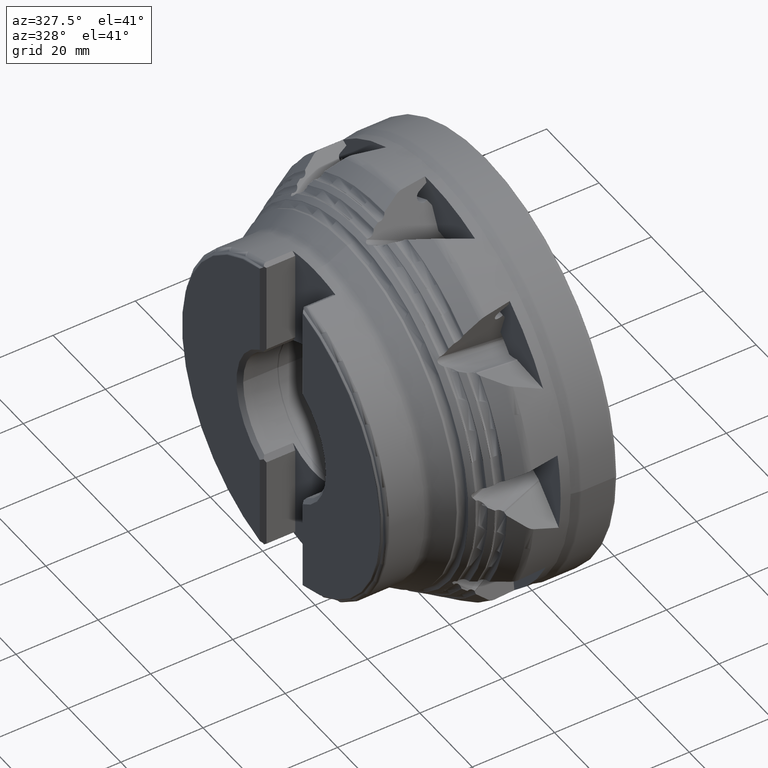
[diagram: clean part render]
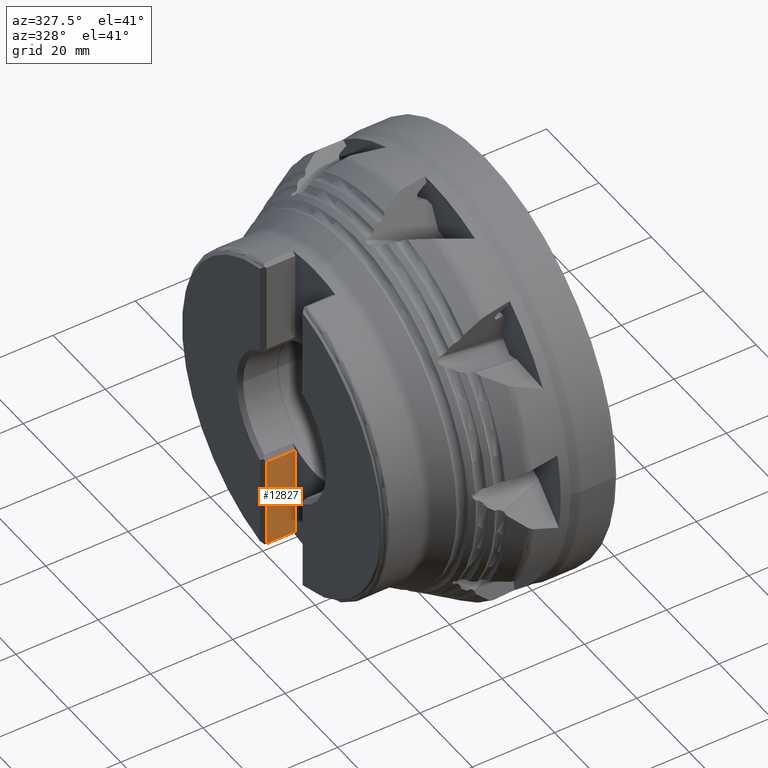
[diagram: same view with one face highlighted and labeled with its STEP entity id]
A machine part, auxiliary view. The second image highlights one B-rep face of the part: STEP entity #12827.
In plain terms, the highlighted planar face has unit normal (0, 1, -0).
Its self-contained STEP definition (entity closure, byte-faithful):
#4596 = CARTESIAN_POINT ( 'NONE',  ( -47.25000000000000000, 7.200000000000005500, 43.17499999999999700 ) ) ;
#4597 = DIRECTION ( 'NONE',  ( -0.0000000000000000000, -0.0000000000000000000, -1.000000000000000000 ) ) ;
#4607 = CARTESIAN_POINT ( 'NONE',  ( -40.25000000000000000, 7.200000000000005500, -15.37239106759902200 ) ) ;
#4608 = DIRECTION ( 'NONE',  ( -1.000000000000000000, 0.0000000000000000000, 0.0000000000000000000 ) ) ;
#4609 = CARTESIAN_POINT ( 'NONE',  ( -40.25000000000000000, 7.200000000000005500, 43.17499999999999700 ) ) ;
#4610 = DIRECTION ( 'NONE',  ( -0.0000000000000000000, -0.0000000000000000000, -1.000000000000000000 ) ) ;
#4611 = CARTESIAN_POINT ( 'NONE',  ( -40.25000000000000000, 7.200000000000005500, -37.47303783587896900 ) ) ;
#4612 = DIRECTION ( 'NONE',  ( 1.000000000000000000, 0.0000000000000000000, 0.0000000000000000000 ) ) ;
#5962 = FACE_OUTER_BOUND ( 'NONE', #14029, .T. ) ;
#6901 = CARTESIAN_POINT ( 'NONE',  ( -40.25000000000000000, 7.200000000000005500, 43.17499999999999700 ) ) ;
#6902 = PLANE ( 'NONE',  #22703 ) ;
#6904 = DIRECTION ( 'NONE',  ( 0.0000000000000000000, 1.000000000000000000, -0.0000000000000000000 ) ) ;
#6905 = DIRECTION ( 'NONE',  ( 0.0000000000000000000, 0.0000000000000000000, 1.000000000000000000 ) ) ;
#7605 = CARTESIAN_POINT ( 'NONE',  ( -47.24999999999999300, 7.199999999999998400, -15.37239106759905700 ) ) ;
#7625 = CARTESIAN_POINT ( 'NONE',  ( -40.25000000000000000, 7.200000000000005500, -37.47303783587896900 ) ) ;
#7638 = CARTESIAN_POINT ( 'NONE',  ( -40.25000000000000000, 7.200000000000005500, -15.37239106759902200 ) ) ;
#7639 = CARTESIAN_POINT ( 'NONE',  ( -47.25000000000000000, 7.200000000000004600, -37.47303783587895500 ) ) ;
#10445 = EDGE_CURVE ( 'NONE', #14613, #14647, #21461, .T. ) ;
#10450 = EDGE_CURVE ( 'NONE', #14646, #14613, #21472, .T. ) ;
#10451 = EDGE_CURVE ( 'NONE', #14646, #14633, #21478, .T. ) ;
#10452 = EDGE_CURVE ( 'NONE', #14647, #14633, #21480, .T. ) ;
#12827 = ADVANCED_FACE ( 'NONE', ( #5962 ), #6902, .F. ) ;
#13248 = ORIENTED_EDGE ( 'NONE', *, *, #10451, .F. ) ;
#13249 = ORIENTED_EDGE ( 'NONE', *, *, #10450, .T. ) ;
#13250 = ORIENTED_EDGE ( 'NONE', *, *, #10445, .T. ) ;
#13251 = ORIENTED_EDGE ( 'NONE', *, *, #10452, .T. ) ;
#14029 = EDGE_LOOP ( 'NONE', ( #13248, #13249, #13250, #13251 ) ) ;
#14613 = VERTEX_POINT ( 'NONE', #7605 ) ;
#14633 = VERTEX_POINT ( 'NONE', #7625 ) ;
#14646 = VERTEX_POINT ( 'NONE', #7638 ) ;
#14647 = VERTEX_POINT ( 'NONE', #7639 ) ;
#21461 = LINE ( 'NONE', #4596, #21467 ) ;
#21467 = VECTOR ( 'NONE', #4597, 1000.000000000000000 ) ;
#21472 = LINE ( 'NONE', #4607, #21474 ) ;
#21474 = VECTOR ( 'NONE', #4608, 1000.000000000000000 ) ;
#21478 = LINE ( 'NONE', #4609, #21479 ) ;
#21479 = VECTOR ( 'NONE', #4610, 1000.000000000000000 ) ;
#21480 = LINE ( 'NONE', #4611, #21481 ) ;
#21481 = VECTOR ( 'NONE', #4612, 1000.000000000000000 ) ;
#22703 = AXIS2_PLACEMENT_3D ( 'NONE', #6901, #6904, #6905 ) ;